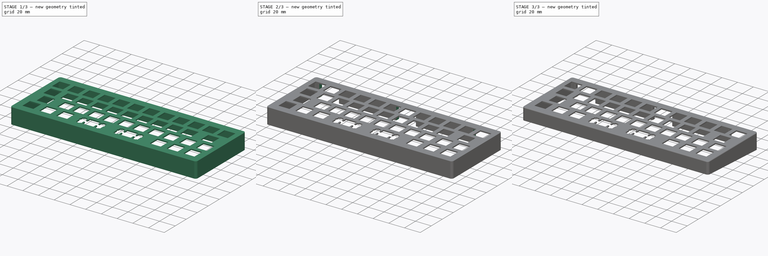
[diagram: build sequence overview — one tinted view per stage of 3, left to right]
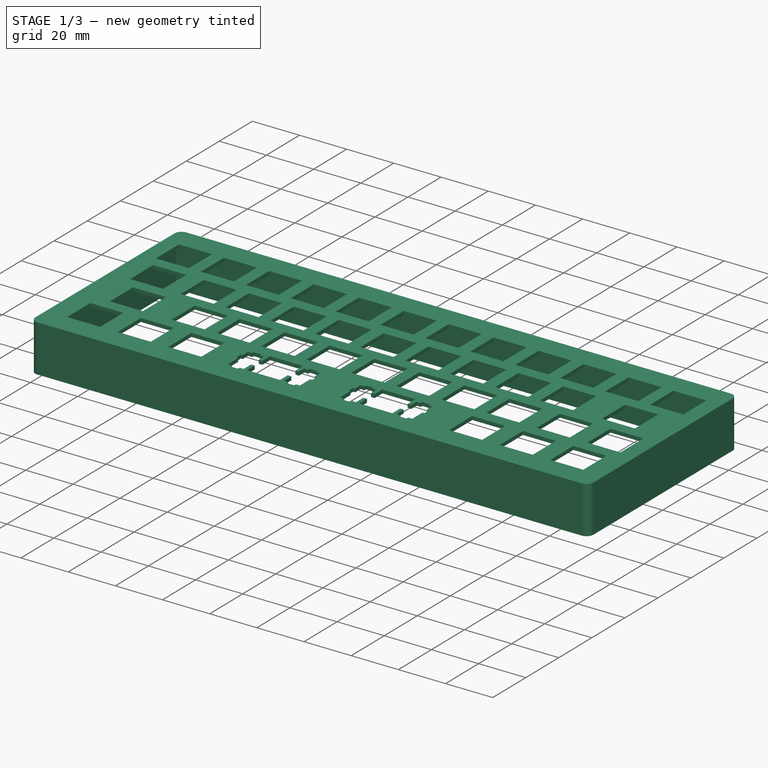
[diagram: stage 1 of 3 — iso view after this stage's code; geometry added in this stage tinted green]
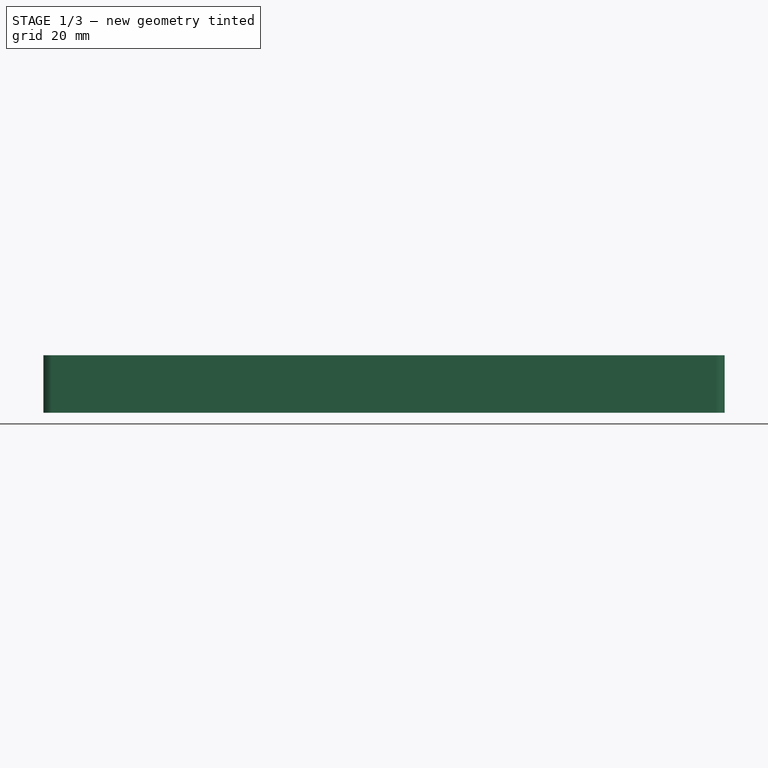
[diagram: stage 1 of 3 — front view after this stage's code; geometry added in this stage tinted green]
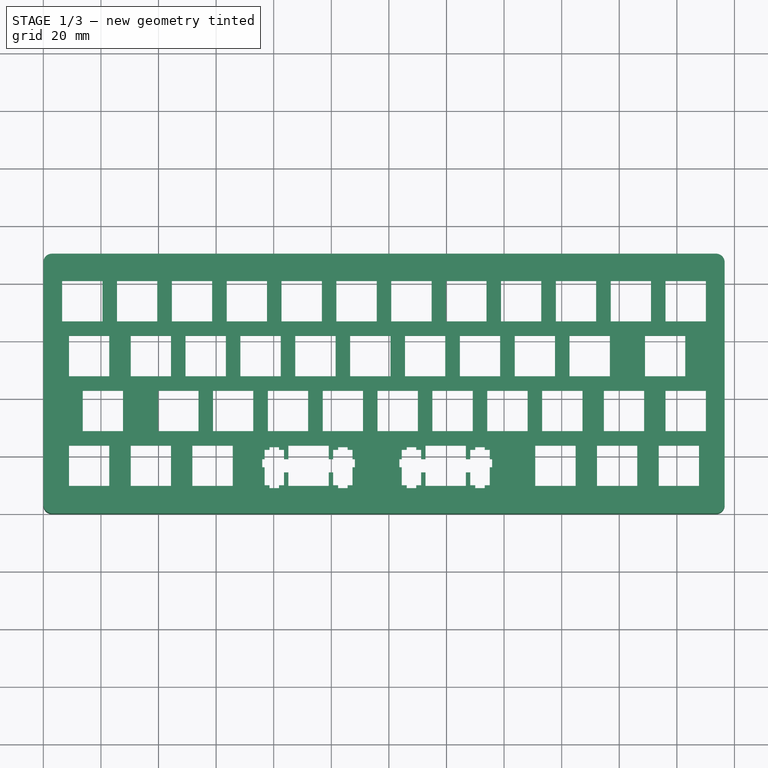
[diagram: stage 1 of 3 — top view after this stage's code; geometry added in this stage tinted green]
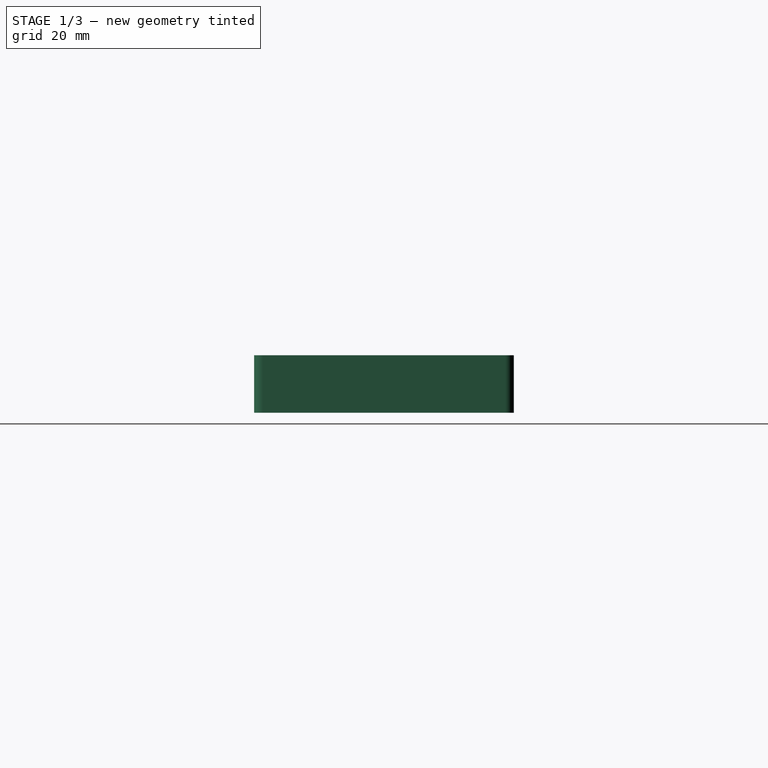
[diagram: stage 1 of 3 — right view after this stage's code; geometry added in this stage tinted green]
FCSTD DOCUMENT  (FreeCAD 0.20R)
Label: Case
License: All rights reserved
LicenseURL: http://en.wikipedia.org/wiki/All_rights_reserved
objects: Sketcher::SketchObject×4, PartDesign::Pocket×3, PartDesign::Pad×1, PartDesign::Fillet×1, PartDesign::Body×1
note: 15 computed .brp shape members not serialized (recipe doc carries the construction recipe); baked Part::Feature solids carry a one-line shape summary decoded from their .brp

FEATURE [Sketcher::SketchObject] Sketch
  FullyConstrained = false
  sketch-geometry (256):
    g0: LineSegment StartX=85.1059 StartY=23.5254 StartZ=0 EndX=85.1059 EndY=18.8249 EndZ=0
    g1: LineSegment StartX=85.1059 StartY=18.8249 StartZ=0 EndX=83.5805 EndY=18.8249 EndZ=0
    g2: LineSegment StartX=83.5805 StartY=18.8249 StartZ=0 EndX=83.5805 EndY=22.0551 EndZ=0
    g3: LineSegment StartX=83.5805 StartY=22.0551 StartZ=0 EndX=81.855 EndY=22.0551 EndZ=0
    g4: LineSegment StartX=81.855 StartY=22.0551 StartZ=0 EndX=81.855 EndY=22.977 EndZ=0
    g5: LineSegment StartX=81.855 StartY=22.977 StartZ=0 EndX=78.5559 EndY=22.977 EndZ=0
    g6: LineSegment StartX=78.5559 StartY=22.977 StartZ=0 EndX=78.5559 EndY=22.0551 EndZ=0
    g7: LineSegment StartX=78.5559 StartY=22.0551 StartZ=0 EndX=76.8308 EndY=22.0551 EndZ=0
    g8: LineSegment StartX=76.8308 StartY=22.0551 StartZ=0 EndX=76.8308 EndY=18.8249 EndZ=0
    g9: LineSegment StartX=76.8308 StartY=18.8249 StartZ=0 EndX=76.0053 EndY=18.8249 EndZ=0
    g10: LineSegment StartX=76.0053 StartY=18.8249 StartZ=0 EndX=76.0053 EndY=16.0261 EndZ=0
    g11: LineSegment StartX=76.0053 StartY=16.0261 StartZ=0 EndX=76.8308 EndY=16.0261 EndZ=0
    g12: LineSegment StartX=76.8308 StartY=16.0261 StartZ=0 EndX=76.8308 EndY=9.75608 EndZ=0
    g13: LineSegment StartX=76.8308 StartY=9.75608 StartZ=0 EndX=78.5559 EndY=9.75608 EndZ=0
    g14: LineSegment StartX=78.5559 StartY=9.75608 StartZ=0 EndX=78.5559 EndY=8.77492 EndZ=0
    g15: LineSegment StartX=78.5559 StartY=8.77492 StartZ=0 EndX=81.855 EndY=8.77492 EndZ=0
    g16: LineSegment StartX=81.855 StartY=8.77492 StartZ=0 EndX=81.855 EndY=9.75608 EndZ=0
    g17: LineSegment StartX=81.855 StartY=9.75608 StartZ=0 EndX=83.5805 EndY=9.75608 EndZ=0
    g18: LineSegment StartX=83.5805 StartY=9.75608 StartZ=0 EndX=83.5805 EndY=14.225 EndZ=0
    g19: LineSegment StartX=83.5805 StartY=14.225 StartZ=0 EndX=85.1059 EndY=14.225 EndZ=0
    g20: LineSegment StartX=85.1059 StartY=14.225 StartZ=0 EndX=85.1059 EndY=9.52595 EndZ=0
    g21: LineSegment StartX=85.1059 StartY=9.52595 StartZ=0 EndX=99.1052 EndY=9.52595 EndZ=0
    g22: LineSegment StartX=99.1052 StartY=9.52595 StartZ=0 EndX=99.1052 EndY=14.225 EndZ=0
    g23: LineSegment StartX=99.1052 StartY=14.225 StartZ=0 EndX=100.631 EndY=14.225 EndZ=0
    g24: LineSegment StartX=100.631 StartY=14.225 StartZ=0 EndX=100.631 EndY=9.75608 EndZ=0
    g25: LineSegment StartX=100.631 StartY=9.75608 StartZ=0 EndX=102.355 EndY=9.75608 EndZ=0
    g26: LineSegment StartX=102.355 StartY=9.75608 StartZ=0 EndX=102.355 EndY=8.77492 EndZ=0
    g27: LineSegment StartX=102.355 StartY=8.77492 StartZ=0 EndX=105.655 EndY=8.77492 EndZ=0
    g28: LineSegment StartX=105.655 StartY=8.77492 StartZ=0 EndX=105.655 EndY=9.75608 EndZ=0
    g29: LineSegment StartX=105.655 StartY=9.75608 StartZ=0 EndX=107.38 EndY=9.75608 EndZ=0
    g30: LineSegment StartX=107.38 StartY=9.75608 StartZ=0 EndX=107.38 EndY=16.0261 EndZ=0
    g31: LineSegment StartX=107.38 StartY=16.0261 StartZ=0 EndX=108.206 EndY=16.0261 EndZ=0
    g32: LineSegment StartX=108.206 StartY=16.0261 StartZ=0 EndX=108.206 EndY=18.8249 EndZ=0
    g33: LineSegment StartX=108.206 StartY=18.8249 StartZ=0 EndX=107.38 EndY=18.8249 EndZ=0
    g34: LineSegment StartX=107.38 StartY=18.8249 StartZ=0 EndX=107.38 EndY=22.0551 EndZ=0
    g35: LineSegment StartX=107.38 StartY=22.0551 StartZ=0 EndX=105.655 EndY=22.0551 EndZ=0
    g36: LineSegment StartX=105.655 StartY=22.0551 StartZ=0 EndX=105.655 EndY=22.977 EndZ=0
    g37: LineSegment StartX=105.655 StartY=22.977 StartZ=0 EndX=102.355 EndY=22.977 EndZ=0
    g38: LineSegment StartX=102.355 StartY=22.977 StartZ=0 EndX=102.355 EndY=22.0551 EndZ=0
    g39: LineSegment StartX=102.355 StartY=22.0551 StartZ=0 EndX=100.631 EndY=22.0551 EndZ=0
    g40: LineSegment StartX=100.631 StartY=22.0551 StartZ=0 EndX=100.631 EndY=18.8249 EndZ=0
    g41: LineSegment StartX=100.631 StartY=18.8249 StartZ=0 EndX=99.1052 EndY=18.8249 EndZ=0
    g42: LineSegment StartX=99.1052 StartY=18.8249 StartZ=0 EndX=99.1052 EndY=23.5254 EndZ=0
    g43: LineSegment StartX=99.1052 StartY=23.5254 StartZ=0 EndX=85.1059 EndY=23.5254 EndZ=0
    g44: LineSegment StartX=132.731 StartY=23.5254 StartZ=0 EndX=132.731 EndY=18.8249 EndZ=0
    g45: LineSegment StartX=132.731 StartY=18.8249 StartZ=0 EndX=131.206 EndY=18.8249 EndZ=0
    g46: LineSegment StartX=131.206 StartY=18.8249 StartZ=0 EndX=131.206 EndY=22.0551 EndZ=0
    g47: LineSegment StartX=131.206 StartY=22.0551 StartZ=0 EndX=129.48 EndY=22.0551 EndZ=0
    g48: LineSegment StartX=129.48 StartY=22.0551 StartZ=0 EndX=129.48 EndY=22.977 EndZ=0
    g49: LineSegment StartX=129.48 StartY=22.977 StartZ=0 EndX=126.181 EndY=22.977 EndZ=0
    g50: LineSegment StartX=126.181 StartY=22.977 StartZ=0 EndX=126.181 EndY=22.0551 EndZ=0
    g51: LineSegment StartX=126.181 StartY=22.0551 StartZ=0 EndX=124.456 EndY=22.0551 EndZ=0
    g52: LineSegment StartX=124.456 StartY=22.0551 StartZ=0 EndX=124.456 EndY=18.8249 EndZ=0
    g53: LineSegment StartX=124.456 StartY=18.8249 StartZ=0 EndX=123.63 EndY=18.8249 EndZ=0
    g54: LineSegment StartX=123.63 StartY=18.8249 StartZ=0 EndX=123.63 EndY=16.0261 EndZ=0
    g55: LineSegment StartX=123.63 StartY=16.0261 StartZ=0 EndX=124.456 EndY=16.0261 EndZ=0
    g56: LineSegment StartX=124.456 StartY=16.0261 StartZ=0 EndX=124.456 EndY=9.75608 EndZ=0
    g57: LineSegment StartX=124.456 StartY=9.75608 StartZ=0 EndX=126.181 EndY=9.75608 EndZ=0
    g58: LineSegment StartX=126.181 StartY=9.75608 StartZ=0 EndX=126.181 EndY=8.77492 EndZ=0
    g59: LineSegment StartX=126.181 StartY=8.77492 StartZ=0 EndX=129.48 EndY=8.77492 EndZ=0
    g60: LineSegment StartX=129.48 StartY=8.77492 StartZ=0 EndX=129.48 EndY=9.75608 EndZ=0
    g61: LineSegment StartX=129.48 StartY=9.75608 StartZ=0 EndX=131.206 EndY=9.75608 EndZ=0
    g62: LineSegment StartX=131.206 StartY=9.75608 StartZ=0 EndX=131.206 EndY=14.225 EndZ=0
    g63: LineSegment StartX=131.206 StartY=14.225 StartZ=0 EndX=132.731 EndY=14.225 EndZ=0
    g64: LineSegment StartX=132.731 StartY=14.225 StartZ=0 EndX=132.731 EndY=9.52595 EndZ=0
    g65: LineSegment StartX=132.731 StartY=9.52595 StartZ=0 EndX=146.73 EndY=9.52595 EndZ=0
    g66: LineSegment StartX=146.73 StartY=9.52595 StartZ=0 EndX=146.73 EndY=14.225 EndZ=0
    g67: LineSegment StartX=146.73 StartY=14.225 StartZ=0 EndX=148.256 EndY=14.225 EndZ=0
    g68: LineSegment StartX=148.256 StartY=14.225 StartZ=0 EndX=148.256 EndY=9.75608 EndZ=0
    g69: LineSegment StartX=148.256 StartY=9.75608 StartZ=0 EndX=149.981 EndY=9.75608 EndZ=0
    g70: LineSegment StartX=149.981 StartY=9.75608 StartZ=0 EndX=149.981 EndY=8.77492 EndZ=0
    g71: LineSegment StartX=149.981 StartY=8.77492 StartZ=0 EndX=153.28 EndY=8.77492 EndZ=0
    g72: LineSegment StartX=153.28 StartY=8.77492 StartZ=0 EndX=153.28 EndY=9.75608 EndZ=0
    g73: LineSegment StartX=153.28 StartY=9.75608 StartZ=0 EndX=155.005 EndY=9.75608 EndZ=0
    g74: LineSegment StartX=155.005 StartY=9.75608 StartZ=0 EndX=155.005 EndY=16.0261 EndZ=0
    g75: LineSegment StartX=155.005 StartY=16.0261 StartZ=0 EndX=155.831 EndY=16.0261 EndZ=0
    g76: LineSegment StartX=155.831 StartY=16.0261 StartZ=0 EndX=155.831 EndY=18.8249 EndZ=0
    g77: LineSegment StartX=155.831 StartY=18.8249 StartZ=0 EndX=155.005 EndY=18.8249 EndZ=0
    g78: LineSegment StartX=155.005 StartY=18.8249 StartZ=0 EndX=155.005 EndY=22.0551 EndZ=0
    g79: LineSegment StartX=155.005 StartY=22.0551 StartZ=0 EndX=153.28 EndY=22.0551 EndZ=0
    g80: LineSegment StartX=153.28 StartY=22.0551 StartZ=0 EndX=153.28 EndY=22.977 EndZ=0
    g81: LineSegment StartX=153.28 StartY=22.977 StartZ=0 EndX=149.981 EndY=22.977 EndZ=0
    g82: LineSegment StartX=149.981 StartY=22.977 StartZ=0 EndX=149.981 EndY=22.0551 EndZ=0
    g83: LineSegment StartX=149.981 StartY=22.0551 StartZ=0 EndX=148.256 EndY=22.0551 EndZ=0
    g84: LineSegment StartX=148.256 StartY=22.0551 StartZ=0 EndX=148.256 EndY=18.8249 EndZ=0
    g85: LineSegment StartX=148.256 StartY=18.8249 StartZ=0 EndX=146.73 EndY=18.8249 EndZ=0
    g86: LineSegment StartX=146.73 StartY=18.8249 StartZ=0 EndX=146.73 EndY=23.5254 EndZ=0
    g87: LineSegment StartX=146.73 StartY=23.5254 StartZ=0 EndX=132.731 EndY=23.5254 EndZ=0
    g88: LineSegment StartX=8.90583 StartY=23.5254 StartZ=0 EndX=22.9053 EndY=23.5254 EndZ=0
    g89: LineSegment StartX=22.9053 StartY=23.5254 StartZ=0 EndX=22.9053 EndY=9.52595 EndZ=0
    g90: LineSegment StartX=22.9053 StartY=9.52595 StartZ=0 EndX=8.90583 EndY=9.52595 EndZ=0
    g91: LineSegment StartX=8.90583 StartY=9.52595 StartZ=0 EndX=8.90583 EndY=23.5254 EndZ=0
    g92: LineSegment StartX=30.3371 StartY=23.5254 StartZ=0 EndX=44.3364 EndY=23.5254 EndZ=0
    g93: LineSegment StartX=44.3364 StartY=23.5254 StartZ=0 EndX=44.3364 EndY=9.52595 EndZ=0
    g94: LineSegment StartX=44.3364 StartY=9.52595 StartZ=0 EndX=30.3371 EndY=9.52595 EndZ=0
    g95: LineSegment StartX=30.3371 StartY=9.52595 StartZ=0 EndX=30.3371 EndY=23.5254 EndZ=0
    g96: LineSegment StartX=51.767 StartY=23.5254 StartZ=0 EndX=65.7677 EndY=23.5254 EndZ=0
    g97: LineSegment StartX=65.7677 StartY=23.5254 StartZ=0 EndX=65.7677 EndY=9.52595 EndZ=0
    g98: LineSegment StartX=65.7677 StartY=9.52595 StartZ=0 EndX=51.767 EndY=9.52595 EndZ=0
    g99: LineSegment StartX=51.767 StartY=9.52595 StartZ=0 EndX=51.767 EndY=23.5254 EndZ=0
    g100: LineSegment StartX=170.831 StartY=23.5254 StartZ=0 EndX=184.83 EndY=23.5254 EndZ=0
    g101: LineSegment StartX=184.83 StartY=23.5254 StartZ=0 EndX=184.83 EndY=9.52595 EndZ=0
    g102: LineSegment StartX=184.83 StartY=9.52595 StartZ=0 EndX=170.831 EndY=9.52595 EndZ=0
    g103: LineSegment StartX=170.831 StartY=9.52595 StartZ=0 EndX=170.831 EndY=23.5254 EndZ=0
    g104: LineSegment StartX=192.262 StartY=23.5254 StartZ=0 EndX=206.262 EndY=23.5254 EndZ=0
    g105: LineSegment StartX=206.262 StartY=23.5254 StartZ=0 EndX=206.262 EndY=9.52595 EndZ=0
    g106: LineSegment StartX=206.262 StartY=9.52595 StartZ=0 EndX=192.262 EndY=9.52595 EndZ=0
    g107: LineSegment StartX=192.262 StartY=9.52595 StartZ=0 EndX=192.262 EndY=23.5254 EndZ=0
    g108: LineSegment StartX=213.692 StartY=23.5254 StartZ=0 EndX=227.693 EndY=23.5254 EndZ=0
    g109: LineSegment StartX=227.693 StartY=23.5254 StartZ=0 EndX=227.693 EndY=9.52595 EndZ=0
    g110: LineSegment StartX=227.693 StartY=9.52595 StartZ=0 EndX=213.692 EndY=9.52595 EndZ=0
    g111: LineSegment StartX=213.692 StartY=9.52595 StartZ=0 EndX=213.692 EndY=23.5254 EndZ=0
    g112: LineSegment StartX=13.6669 StartY=42.5753 StartZ=0 EndX=27.6678 EndY=42.5753 EndZ=0
    g113: LineSegment StartX=27.6678 StartY=42.5753 StartZ=0 EndX=27.6678 EndY=28.5759 EndZ=0
    g114: LineSegment StartX=27.6678 StartY=28.5759 StartZ=0 EndX=13.6669 EndY=28.5759 EndZ=0
    g115: LineSegment StartX=13.6669 StartY=28.5759 StartZ=0 EndX=13.6669 EndY=42.5753 EndZ=0
    g116: LineSegment StartX=39.8621 StartY=42.5753 StartZ=0 EndX=53.8614 EndY=42.5753 EndZ=0
    g117: LineSegment StartX=53.8614 StartY=42.5753 StartZ=0 EndX=53.8614 EndY=28.5759 EndZ=0
    g118: LineSegment StartX=53.8614 StartY=28.5759 StartZ=0 EndX=39.8621 EndY=28.5759 EndZ=0
    g119: LineSegment StartX=39.8621 StartY=28.5759 StartZ=0 EndX=39.8621 EndY=42.5753 EndZ=0
    g120: LineSegment StartX=58.9121 StartY=42.5753 StartZ=0 EndX=72.9114 EndY=42.5753 EndZ=0
    g121: LineSegment StartX=72.9114 StartY=42.5753 StartZ=0 EndX=72.9114 EndY=28.5759 EndZ=0
    g122: LineSegment StartX=72.9114 StartY=28.5759 StartZ=0 EndX=58.9121 EndY=28.5759 EndZ=0
    g123: LineSegment StartX=58.9121 StartY=28.5759 StartZ=0 EndX=58.9121 EndY=42.5753 EndZ=0
    g124: LineSegment StartX=77.9621 StartY=42.5753 StartZ=0 EndX=91.9614 EndY=42.5753 EndZ=0
    g125: LineSegment StartX=91.9614 StartY=42.5753 StartZ=0 EndX=91.9614 EndY=28.5759 EndZ=0
    g126: LineSegment StartX=91.9614 StartY=28.5759 StartZ=0 EndX=77.9621 EndY=28.5759 EndZ=0
    g127: LineSegment StartX=77.9621 StartY=28.5759 StartZ=0 EndX=77.9621 EndY=42.5753 EndZ=0
    g128: LineSegment StartX=97.0121 StartY=42.5753 StartZ=0 EndX=111.012 EndY=42.5753 EndZ=0
    g129: LineSegment StartX=111.012 StartY=42.5753 StartZ=0 EndX=111.012 EndY=28.5759 EndZ=0
    g130: LineSegment StartX=111.012 StartY=28.5759 StartZ=0 EndX=97.0121 EndY=28.5759 EndZ=0
    g131: LineSegment StartX=97.0121 StartY=28.5759 StartZ=0 EndX=97.0121 EndY=42.5753 EndZ=0
    g132: LineSegment StartX=116.062 StartY=42.5753 StartZ=0 EndX=130.062 EndY=42.5753 EndZ=0
    g133: LineSegment StartX=130.062 StartY=42.5753 StartZ=0 EndX=130.062 EndY=28.5759 EndZ=0
    g134: LineSegment StartX=130.062 StartY=28.5759 StartZ=0 EndX=116.062 EndY=28.5759 EndZ=0
    g135: LineSegment StartX=116.062 StartY=28.5759 StartZ=0 EndX=116.062 EndY=42.5753 EndZ=0
    g136: LineSegment StartX=135.112 StartY=42.5753 StartZ=0 EndX=149.112 EndY=42.5753 EndZ=0
    g137: LineSegment StartX=149.112 StartY=42.5753 StartZ=0 EndX=149.112 EndY=28.5759 EndZ=0
    g138: LineSegment StartX=149.112 StartY=28.5759 StartZ=0 EndX=135.112 EndY=28.5759 EndZ=0
    g139: LineSegment StartX=135.112 StartY=28.5759 StartZ=0 EndX=135.112 EndY=42.5753 EndZ=0
    g140: LineSegment StartX=154.162 StartY=42.5753 StartZ=0 EndX=168.162 EndY=42.5753 EndZ=0
    g141: LineSegment StartX=168.162 StartY=42.5753 StartZ=0 EndX=168.162 EndY=28.5759 EndZ=0
    g142: LineSegment StartX=168.162 StartY=28.5759 StartZ=0 EndX=154.162 EndY=28.5759 EndZ=0
    g143: LineSegment StartX=154.162 StartY=28.5759 StartZ=0 EndX=154.162 EndY=42.5753 EndZ=0
    g144: LineSegment StartX=173.212 StartY=42.5753 StartZ=0 EndX=187.212 EndY=42.5753 EndZ=0
    g145: LineSegment StartX=187.212 StartY=42.5753 StartZ=0 EndX=187.212 EndY=28.5759 EndZ=0
    g146: LineSegment StartX=187.212 StartY=28.5759 StartZ=0 EndX=173.212 EndY=28.5759 EndZ=0
    g147: LineSegment StartX=173.212 StartY=28.5759 StartZ=0 EndX=173.212 EndY=42.5753 EndZ=0
    g148: LineSegment StartX=194.642 StartY=42.5753 StartZ=0 EndX=208.643 EndY=42.5753 EndZ=0
    g149: LineSegment StartX=208.643 StartY=42.5753 StartZ=0 EndX=208.643 EndY=28.5759 EndZ=0
    g150: LineSegment StartX=208.643 StartY=28.5759 StartZ=0 EndX=194.642 EndY=28.5759 EndZ=0
    g151: LineSegment StartX=194.642 StartY=28.5759 StartZ=0 EndX=194.642 EndY=42.5753 EndZ=0
    g152: LineSegment StartX=216.075 StartY=42.5753 StartZ=0 EndX=230.074 EndY=42.5753 EndZ=0
    g153: LineSegment StartX=230.074 StartY=42.5753 StartZ=0 EndX=230.074 EndY=28.5759 EndZ=0
    g154: LineSegment StartX=230.074 StartY=28.5759 StartZ=0 EndX=216.075 EndY=28.5759 EndZ=0
    g155: LineSegment StartX=216.075 StartY=28.5759 StartZ=0 EndX=216.075 EndY=42.5753 EndZ=0
    g156: LineSegment StartX=8.90583 StartY=61.6254 StartZ=0 EndX=22.9053 EndY=61.6254 EndZ=0
    g157: LineSegment StartX=22.9053 StartY=61.6254 StartZ=0 EndX=22.9053 EndY=47.6261 EndZ=0
    g158: LineSegment StartX=22.9053 StartY=47.6261 StartZ=0 EndX=8.90583 EndY=47.6261 EndZ=0
    g159: LineSegment StartX=8.90583 StartY=47.6261 StartZ=0 EndX=8.90583 EndY=61.6254 EndZ=0
    g160: LineSegment StartX=30.3371 StartY=61.6254 StartZ=0 EndX=44.3364 EndY=61.6254 EndZ=0
    g161: LineSegment StartX=44.3364 StartY=61.6254 StartZ=0 EndX=44.3364 EndY=47.6261 EndZ=0
    g162: LineSegment StartX=44.3364 StartY=47.6261 StartZ=0 EndX=30.3371 EndY=47.6261 EndZ=0
    g163: LineSegment StartX=30.3371 StartY=47.6261 StartZ=0 EndX=30.3371 EndY=61.6254 EndZ=0
    g164: LineSegment StartX=49.3871 StartY=61.6254 StartZ=0 EndX=63.3864 EndY=61.6254 EndZ=0
    g165: LineSegment StartX=63.3864 StartY=61.6254 StartZ=0 EndX=63.3864 EndY=47.6261 EndZ=0
    g166: LineSegment StartX=63.3864 StartY=47.6261 StartZ=0 EndX=49.3871 EndY=47.6261 EndZ=0
    g167: LineSegment StartX=49.3871 StartY=47.6261 StartZ=0 EndX=49.3871 EndY=61.6254 EndZ=0
    g168: LineSegment StartX=68.4371 StartY=61.6254 StartZ=0 EndX=82.4364 EndY=61.6254 EndZ=0
    g169: LineSegment StartX=82.4364 StartY=61.6254 StartZ=0 EndX=82.4364 EndY=47.6261 EndZ=0
    g170: LineSegment StartX=82.4364 StartY=47.6261 StartZ=0 EndX=68.4371 EndY=47.6261 EndZ=0
    g171: LineSegment StartX=68.4371 StartY=47.6261 StartZ=0 EndX=68.4371 EndY=61.6254 EndZ=0
    g172: LineSegment StartX=87.4871 StartY=61.6254 StartZ=0 EndX=101.486 EndY=61.6254 EndZ=0
    g173: LineSegment StartX=101.486 StartY=61.6254 StartZ=0 EndX=101.486 EndY=47.6261 EndZ=0
    g174: LineSegment StartX=101.486 StartY=47.6261 StartZ=0 EndX=87.4871 EndY=47.6261 EndZ=0
    g175: LineSegment StartX=87.4871 StartY=47.6261 StartZ=0 EndX=87.4871 EndY=61.6254 EndZ=0
    g176: LineSegment StartX=106.537 StartY=61.6254 StartZ=0 EndX=120.537 EndY=61.6254 EndZ=0
    g177: LineSegment StartX=120.537 StartY=61.6254 StartZ=0 EndX=120.537 EndY=47.6261 EndZ=0
    g178: LineSegment StartX=120.537 StartY=47.6261 StartZ=0 EndX=106.537 EndY=47.6261 EndZ=0
    g179: LineSegment StartX=106.537 StartY=47.6261 StartZ=0 EndX=106.537 EndY=61.6254 EndZ=0
    g180: LineSegment StartX=125.587 StartY=61.6254 StartZ=0 EndX=139.587 EndY=61.6254 EndZ=0
    g181: LineSegment StartX=139.587 StartY=61.6254 StartZ=0 EndX=139.587 EndY=47.6261 EndZ=0
    g182: LineSegment StartX=139.587 StartY=47.6261 StartZ=0 EndX=125.587 EndY=47.6261 EndZ=0
    g183: LineSegment StartX=125.587 StartY=47.6261 StartZ=0 EndX=125.587 EndY=61.6254 EndZ=0
    g184: LineSegment StartX=144.637 StartY=61.6254 StartZ=0 EndX=158.637 EndY=61.6254 EndZ=0
    g185: LineSegment StartX=158.637 StartY=61.6254 StartZ=0 EndX=158.637 EndY=47.6261 EndZ=0
    g186: LineSegment StartX=158.637 StartY=47.6261 StartZ=0 EndX=144.637 EndY=47.6261 EndZ=0
    g187: LineSegment StartX=144.637 StartY=47.6261 StartZ=0 EndX=144.637 EndY=61.6254 EndZ=0
    g188: LineSegment StartX=163.687 StartY=61.6254 StartZ=0 EndX=177.687 EndY=61.6254 EndZ=0
    g189: LineSegment StartX=177.687 StartY=61.6254 StartZ=0 EndX=177.687 EndY=47.6261 EndZ=0
    g190: LineSegment StartX=177.687 StartY=47.6261 StartZ=0 EndX=163.687 EndY=47.6261 EndZ=0
    g191: LineSegment StartX=163.687 StartY=47.6261 StartZ=0 EndX=163.687 EndY=61.6254 EndZ=0
    g192: LineSegment StartX=182.737 StartY=61.6254 StartZ=0 EndX=196.737 EndY=61.6254 EndZ=0
    g193: LineSegment StartX=196.737 StartY=61.6254 StartZ=0 EndX=196.737 EndY=47.6261 EndZ=0
    g194: LineSegment StartX=196.737 StartY=47.6261 StartZ=0 EndX=182.737 EndY=47.6261 EndZ=0
    g195: LineSegment StartX=182.737 StartY=47.6261 StartZ=0 EndX=182.737 EndY=61.6254 EndZ=0
    g196: LineSegment StartX=208.931 StartY=61.6254 StartZ=0 EndX=222.93 EndY=61.6254 EndZ=0
    g197: LineSegment StartX=222.93 StartY=61.6254 StartZ=0 EndX=222.93 EndY=47.6261 EndZ=0
    g198: LineSegment StartX=222.93 StartY=47.6261 StartZ=0 EndX=208.931 EndY=47.6261 EndZ=0
    g199: LineSegment StartX=208.931 StartY=47.6261 StartZ=0 EndX=208.931 EndY=61.6254 EndZ=0
    g200: LineSegment StartX=6.52457 StartY=80.6754 StartZ=0 EndX=20.5241 EndY=80.6754 EndZ=0
    g201: LineSegment StartX=20.5241 StartY=80.6754 StartZ=0 EndX=20.5241 EndY=66.6761 EndZ=0
    g202: LineSegment StartX=20.5241 StartY=66.6761 StartZ=0 EndX=6.52457 EndY=66.6761 EndZ=0
    g203: LineSegment StartX=6.52457 StartY=66.6761 StartZ=0 EndX=6.52457 EndY=80.6754 EndZ=0
    g204: LineSegment StartX=25.5746 StartY=80.6754 StartZ=0 EndX=39.5739 EndY=80.6754 EndZ=0
    g205: LineSegment StartX=39.5739 StartY=80.6754 StartZ=0 EndX=39.5739 EndY=66.6761 EndZ=0
    g206: LineSegment StartX=39.5739 StartY=66.6761 StartZ=0 EndX=25.5746 EndY=66.6761 EndZ=0
    g207: LineSegment StartX=25.5746 StartY=66.6761 StartZ=0 EndX=25.5746 EndY=80.6754 EndZ=0
    g208: LineSegment StartX=44.6246 StartY=80.6754 StartZ=0 EndX=58.6239 EndY=80.6754 EndZ=0
    g209: LineSegment StartX=58.6239 StartY=80.6754 StartZ=0 EndX=58.6239 EndY=66.6761 EndZ=0
    g210: LineSegment StartX=58.6239 StartY=66.6761 StartZ=0 EndX=44.6246 EndY=66.6761 EndZ=0
    g211: LineSegment StartX=44.6246 StartY=66.6761 StartZ=0 EndX=44.6246 EndY=80.6754 EndZ=0
    g212: LineSegment StartX=63.6746 StartY=80.6754 StartZ=0 EndX=77.6739 EndY=80.6754 EndZ=0
    g213: LineSegment StartX=77.6739 StartY=80.6754 StartZ=0 EndX=77.6739 EndY=66.6761 EndZ=0
    g214: LineSegment StartX=77.6739 StartY=66.6761 StartZ=0 EndX=63.6746 EndY=66.6761 EndZ=0
    g215: LineSegment StartX=63.6746 StartY=66.6761 StartZ=0 EndX=63.6746 EndY=80.6754 EndZ=0
    g216: LineSegment StartX=82.7246 StartY=80.6754 StartZ=0 EndX=96.7239 EndY=80.6754 EndZ=0
    g217: LineSegment StartX=96.7239 StartY=80.6754 StartZ=0 EndX=96.7239 EndY=66.6761 EndZ=0
    g218: LineSegment StartX=96.7239 StartY=66.6761 StartZ=0 EndX=82.7246 EndY=66.6761 EndZ=0
    g219: LineSegment StartX=82.7246 StartY=66.6761 StartZ=0 EndX=82.7246 EndY=80.6754 EndZ=0
    g220: LineSegment StartX=101.773 StartY=80.6754 StartZ=0 EndX=115.774 EndY=80.6754 EndZ=0
    g221: LineSegment StartX=115.774 StartY=80.6754 StartZ=0 EndX=115.774 EndY=66.6761 EndZ=0
    g222: LineSegment StartX=115.774 StartY=66.6761 StartZ=0 EndX=101.773 EndY=66.6761 EndZ=0
    g223: LineSegment StartX=101.773 StartY=66.6761 StartZ=0 EndX=101.773 EndY=80.6754 EndZ=0
    g224: LineSegment StartX=120.823 StartY=80.6754 StartZ=0 EndX=134.824 EndY=80.6754 EndZ=0
    g225: LineSegment StartX=134.824 StartY=80.6754 StartZ=0 EndX=134.824 EndY=66.6761 EndZ=0
    g226: LineSegment StartX=134.824 StartY=66.6761 StartZ=0 EndX=120.823 EndY=66.6761 EndZ=0
    g227: LineSegment StartX=120.823 StartY=66.6761 StartZ=0 EndX=120.823 EndY=80.6754 EndZ=0
    g228: LineSegment StartX=139.875 StartY=80.6754 StartZ=0 EndX=153.874 EndY=80.6754 EndZ=0
    g229: LineSegment StartX=153.874 StartY=80.6754 StartZ=0 EndX=153.874 EndY=66.6761 EndZ=0
    g230: LineSegment StartX=153.874 StartY=66.6761 StartZ=0 EndX=139.875 EndY=66.6761 EndZ=0
    g231: LineSegment StartX=139.875 StartY=66.6761 StartZ=0 EndX=139.875 EndY=80.6754 EndZ=0
    g232: LineSegment StartX=158.925 StartY=80.6754 StartZ=0 EndX=172.924 EndY=80.6754 EndZ=0
    g233: LineSegment StartX=172.924 StartY=80.6754 StartZ=0 EndX=172.924 EndY=66.6761 EndZ=0
    g234: LineSegment StartX=172.924 StartY=66.6761 StartZ=0 EndX=158.925 EndY=66.6761 EndZ=0
    g235: LineSegment StartX=158.925 StartY=66.6761 StartZ=0 EndX=158.925 EndY=80.6754 EndZ=0
    g236: LineSegment StartX=177.975 StartY=80.6754 StartZ=0 EndX=191.974 EndY=80.6754 EndZ=0
    g237: LineSegment StartX=191.974 StartY=80.6754 StartZ=0 EndX=191.974 EndY=66.6761 EndZ=0
    g238: LineSegment StartX=191.974 StartY=66.6761 StartZ=0 EndX=177.975 EndY=66.6761 EndZ=0
    g239: LineSegment StartX=177.975 StartY=66.6761 StartZ=0 EndX=177.975 EndY=80.6754 EndZ=0
    g240: LineSegment StartX=197.025 StartY=80.6754 StartZ=0 EndX=211.024 EndY=80.6754 EndZ=0
    g241: LineSegment StartX=211.024 StartY=80.6754 StartZ=0 EndX=211.024 EndY=66.6761 EndZ=0
    g242: LineSegment StartX=211.024 StartY=66.6761 StartZ=0 EndX=197.025 EndY=66.6761 EndZ=0
    g243: LineSegment StartX=197.025 StartY=66.6761 StartZ=0 EndX=197.025 EndY=80.6754 EndZ=0
    g244: LineSegment StartX=216.075 StartY=80.6754 StartZ=0 EndX=230.074 EndY=80.6754 EndZ=0
    g245: LineSegment StartX=230.074 StartY=80.6754 StartZ=0 EndX=230.074 EndY=66.6761 EndZ=0
    g246: LineSegment StartX=230.074 StartY=66.6761 StartZ=0 EndX=216.075 EndY=66.6761 EndZ=0
    g247: LineSegment StartX=216.075 StartY=66.6761 StartZ=0 EndX=216.075 EndY=80.6754 EndZ=0
    g248: ArcOfCircle CenterX=233.6 CenterY=3 CenterZ=0 NormalX=0 NormalY=0 NormalZ=1 AngleXU=0 Radius=3 StartAngle=4.71239 EndAngle=6.28319
    g249: LineSegment StartX=236.6 StartY=87.1998 StartZ=0 EndX=236.6 EndY=3 EndZ=0
    g250: ArcOfCircle CenterX=233.6 CenterY=87.1998 CenterZ=0 NormalX=0 NormalY=0 NormalZ=1 AngleXU=0 Radius=3 StartAngle=0 EndAngle=1.5708
    g251: LineSegment StartX=3 StartY=90.1998 StartZ=0 EndX=233.6 EndY=90.1998 EndZ=0
    g252: ArcOfCircle CenterX=3 CenterY=87.1998 CenterZ=0 NormalX=0 NormalY=0 NormalZ=1 AngleXU=0 Radius=3 StartAngle=1.5708 EndAngle=3.14159
    g253: LineSegment StartX=233.6 StartY=0 StartZ=0 EndX=3 EndY=0 EndZ=0
    g254: LineSegment StartX=0 StartY=3 StartZ=0 EndX=0 EndY=87.1998 EndZ=0
    g255: ArcOfCircle CenterX=3 CenterY=3 CenterZ=0 NormalX=0 NormalY=0 NormalZ=1 AngleXU=0 Radius=3 StartAngle=3.14159 EndAngle=4.71239
  constraints (256):
    c: Coincident(g254,g255)
    c: Coincident(g252,g254)
    c: Coincident(g253,g255)
    c: Coincident(g251,g252)
    c: Coincident(g202,g203)
    c: Coincident(g200,g203)
    c: Coincident(g90,g91)
    c: Coincident(g88,g91)
    c: Coincident(g158,g159)
    c: Coincident(g156,g159)
    c: Coincident(g114,g115)
    c: Coincident(g112,g115)
    c: Coincident(g201,g202)
    c: Coincident(g200,g201)
    c: Coincident(g89,g90)
    c: Coincident(g88,g89)
    c: Coincident(g157,g158)
    c: Coincident(g156,g157)
    c: Coincident(g206,g207)
    c: Coincident(g204,g207)
    c: Coincident(g113,g114)
    c: Coincident(g112,g113)
    c: Coincident(g94,g95)
    c: Coincident(g92,g95)
    c: Coincident(g162,g163)
    c: Coincident(g160,g163)
    c: Coincident(g205,g206)
    c: Coincident(g204,g205)
    c: Coincident(g118,g119)
    c: Coincident(g116,g119)
    c: Coincident(g93,g94)
    c: Coincident(g92,g93)
    c: Coincident(g161,g162)
    c: Coincident(g160,g161)
    c: Coincident(g210,g211)
    c: Coincident(g208,g211)
    c: Coincident(g166,g167)
    c: Coincident(g164,g167)
    c: Coincident(g98,g99)
    c: Coincident(g96,g99)
    c: Coincident(g117,g118)
    c: Coincident(g116,g117)
    c: Coincident(g209,g210)
    c: Coincident(g208,g209)
    c: Coincident(g122,g123)
    c: Coincident(g120,g123)
    c: Coincident(g165,g166)
    c: Coincident(g164,g165)
    c: Coincident(g214,g215)
    c: Coincident(g212,g215)
    c: Coincident(g97,g98)
    c: Coincident(g96,g97)
    c: Coincident(g170,g171)
    c: Coincident(g168,g171)
    c: Coincident(g121,g122)
    c: Coincident(g120,g121)
    c: Coincident(g10,g11)
    c: Coincident(g9,g10)
    c: Coincident(g12,g13)
    c: Coincident(g11,g12)
    c: Coincident(g8,g9)
    c: Coincident(g7,g8)
    c: Coincident(g213,g214)
    c: Coincident(g212,g213)
    c: Coincident(g126,g127)
    c: Coincident(g124,g127)
    c: Coincident(g14,g15)
    c: Coincident(g13,g14)
    c: Coincident(g6,g7)
    c: Coincident(g5,g6)
    c: Coincident(g15,g16)
    c: Coincident(g16,g17)
    c: Coincident(g3,g4)
    c: Coincident(g4,g5)
    c: Coincident(g169,g170)
    c: Coincident(g168,g169)
    c: Coincident(g218,g219)
    c: Coincident(g216,g219)
    c: Coincident(g17,g18)
    c: Coincident(g18,g19)
    c: Coincident(g1,g2)
    c: Coincident(g2,g3)
    c: Coincident(g20,g21)
    c: Coincident(g19,g20)
    c: Coincident(g0,g1)
    c: Coincident(g0,g43)
    c: Coincident(g174,g175)
    c: Coincident(g172,g175)
    c: Coincident(g125,g126)
    c: Coincident(g124,g125)
    c: Coincident(g217,g218)
    c: Coincident(g216,g217)
    c: Coincident(g130,g131)
    c: Coincident(g128,g131)
    c: Coincident(g21,g22)
    c: Coincident(g22,g23)
    c: Coincident(g41,g42)
    c: Coincident(g42,g43)
    c: Coincident(g24,g25)
    c: Coincident(g23,g24)
    c: Coincident(g40,g41)
    c: Coincident(g39,g40)
    c: Coincident(g173,g174)
    c: Coincident(g172,g173)
    c: Coincident(g222,g223)
    c: Coincident(g220,g223)
    c: Coincident(g26,g27)
    c: Coincident(g25,g26)
    c: Coincident(g38,g39)
    c: Coincident(g37,g38)
    c: Coincident(g27,g28)
    c: Coincident(g28,g29)
    c: Coincident(g35,g36)
    c: Coincident(g36,g37)
    c: Coincident(g178,g179)
    c: Coincident(g176,g179)
    c: Coincident(g29,g30)
    c: Coincident(g30,g31)
    c: Coincident(g33,g34)
    c: Coincident(g34,g35)
    c: Coincident(g31,g32)
    c: Coincident(g32,g33)
    c: Coincident(g129,g130)
    c: Coincident(g128,g129)
    c: Coincident(g221,g222)
    c: Coincident(g220,g221)
    c: Coincident(g134,g135)
    c: Coincident(g132,g135)
    c: Coincident(g177,g178)
    c: Coincident(g176,g177)
    c: Coincident(g226,g227)
    c: Coincident(g224,g227)
    c: Coincident(g54,g55)
    c: Coincident(g53,g54)
    c: Coincident(g56,g57)
    c: Coincident(g55,g56)
    c: Coincident(g52,g53)
    c: Coincident(g51,g52)
    c: Coincident(g182,g183)
    c: Coincident(g180,g183)
    c: Coincident(g58,g59)
    c: Coincident(g57,g58)
    c: Coincident(g50,g51)
    c: Coincident(g49,g50)
    c: Coincident(g59,g60)
    c: Coincident(g60,g61)
    c: Coincident(g47,g48)
    c: Coincident(g48,g49)
    c: Coincident(g133,g134)
    c: Coincident(g132,g133)
    c: Coincident(g61,g62)
    c: Coincident(g62,g63)
    c: Coincident(g45,g46)
    c: Coincident(g46,g47)
    c: Coincident(g64,g65)
    c: Coincident(g63,g64)
    c: Coincident(g44,g45)
    c: Coincident(g44,g87)
    c: Coincident(g225,g226)
    c: Coincident(g224,g225)
    c: Coincident(g138,g139)
    c: Coincident(g136,g139)
    c: Coincident(g181,g182)
    c: Coincident(g180,g181)
    c: Coincident(g230,g231)
    c: Coincident(g228,g231)
    c: Coincident(g186,g187)
    c: Coincident(g184,g187)
    c: Coincident(g65,g66)
    c: Coincident(g66,g67)
    c: Coincident(g85,g86)
    c: Coincident(g86,g87)
    c: Coincident(g68,g69)
    c: Coincident(g67,g68)
    c: Coincident(g84,g85)
    c: Coincident(g83,g84)
    c: Coincident(g137,g138)
    c: Coincident(g136,g137)
    c: Coincident(g70,g71)
    c: Coincident(g69,g70)
    c: Coincident(g82,g83)
    c: Coincident(g81,g82)
    c: Coincident(g71,g72)
    c: Coincident(g72,g73)
    c: Coincident(g79,g80)
    c: Coincident(g80,g81)
    c: Coincident(g229,g230)
    c: Coincident(g228,g229)
    c: Coincident(g142,g143)
    c: Coincident(g140,g143)
    c: Coincident(g73,g74)
    c: Coincident(g74,g75)
    c: Coincident(g77,g78)
    c: Coincident(g78,g79)
    c: Coincident(g75,g76)
    c: Coincident(g76,g77)
    c: Coincident(g185,g186)
    c: Coincident(g184,g185)
    c: Coincident(g234,g235)
    c: Coincident(g232,g235)
    c: Coincident(g190,g191)
    c: Coincident(g188,g191)
    c: Coincident(g141,g142)
    c: Coincident(g140,g141)
    c: Coincident(g102,g103)
    c: Coincident(g100,g103)
    c: Coincident(g233,g234)
    c: Coincident(g232,g233)
    c: Coincident(g146,g147)
    c: Coincident(g144,g147)
    c: Coincident(g189,g190)
    c: Coincident(g188,g189)
    c: Coincident(g238,g239)
    c: Coincident(g236,g239)
    c: Coincident(g194,g195)
    c: Coincident(g192,g195)
    c: Coincident(g101,g102)
    c: Coincident(g100,g101)
    c: Coincident(g145,g146)
    c: Coincident(g144,g145)
    c: Coincident(g237,g238)
    c: Coincident(g236,g237)
    c: Coincident(g106,g107)
    c: Coincident(g104,g107)
    c: Coincident(g150,g151)
    c: Coincident(g148,g151)
    c: Coincident(g193,g194)
    c: Coincident(g192,g193)
    c: Coincident(g242,g243)
    c: Coincident(g240,g243)
    c: Coincident(g105,g106)
    c: Coincident(g104,g105)
    c: Coincident(g149,g150)
    c: Coincident(g148,g149)
    c: Coincident(g198,g199)
    c: Coincident(g196,g199)
    c: Coincident(g241,g242)
    c: Coincident(g240,g241)
    c: Coincident(g110,g111)
    c: Coincident(g108,g111)
    c: Coincident(g154,g155)
    c: Coincident(g152,g155)
    c: Coincident(g246,g247)
    c: Coincident(g244,g247)
    c: Coincident(g197,g198)
    c: Coincident(g196,g197)
    c: Coincident(g109,g110)
    c: Coincident(g108,g109)
    c: Coincident(g153,g154)
    c: Coincident(g152,g153)
    c: Coincident(g245,g246)
    c: Coincident(g244,g245)
    c: Coincident(g248,g253)
    c: Coincident(g250,g251)
    c: Coincident(g248,g249)
    c: Coincident(g249,g250)
FEATURE [PartDesign::Pad] Pad
  AlongSketchNormal = false
  Direction = (0,0,1)
  Length = 20
  Length2 = 10
  Profile = -> Sketch
  ReferenceAxis = -> Sketch [N_Axis]
  Type = 0
FEATURE [Sketcher::SketchObject] Sketch001
  ExternalGeometry = -> [Pad]
  FullyConstrained = true
  MapMode = 5
  Placement = pos=(0,0,0) rot=(1,0,0;3.14159rad)
  Support = -> [Pad]
  sketch-geometry (4):
    g0: LineSegment StartX=234.6 StartY=-5 StartZ=0 EndX=2 EndY=-5 EndZ=0
    g1: LineSegment StartX=2 StartY=-5 StartZ=0 EndX=2 EndY=-85.1998 EndZ=0
    g2: LineSegment StartX=2 StartY=-85.1998 StartZ=0 EndX=234.6 EndY=-85.1998 EndZ=0
    g3: LineSegment StartX=234.6 StartY=-85.1998 StartZ=0 EndX=234.6 EndY=-5 EndZ=0
  constraints (12):
    c: Coincident(g0,g1)
    c: Coincident(g1,g2)
    c: Coincident(g2,g3)
    c: Coincident(g3,g0)
    c: Horizontal(g0)
    c: Horizontal(g2)
    c: Vertical(g1)
    c: Vertical(g3)
    c: DistanceY(g-5,g1) = 5
    c: DistanceY(g0,g-3) = 5
    c: DistanceX(g0,g-4) = 2
    c: DistanceX(g-6,g1) = 2
FEATURE [PartDesign::Pocket] Pocket
  BaseFeature = -> Pad
  Direction = (0,0,1)
  Length = 0
  Length2 = 5
  Offset = -1.5
  Profile = -> Sketch001
  ReferenceAxis = -> Sketch001 [N_Axis]
  Type = 3
  UpToFace = -> Pad [Face258]
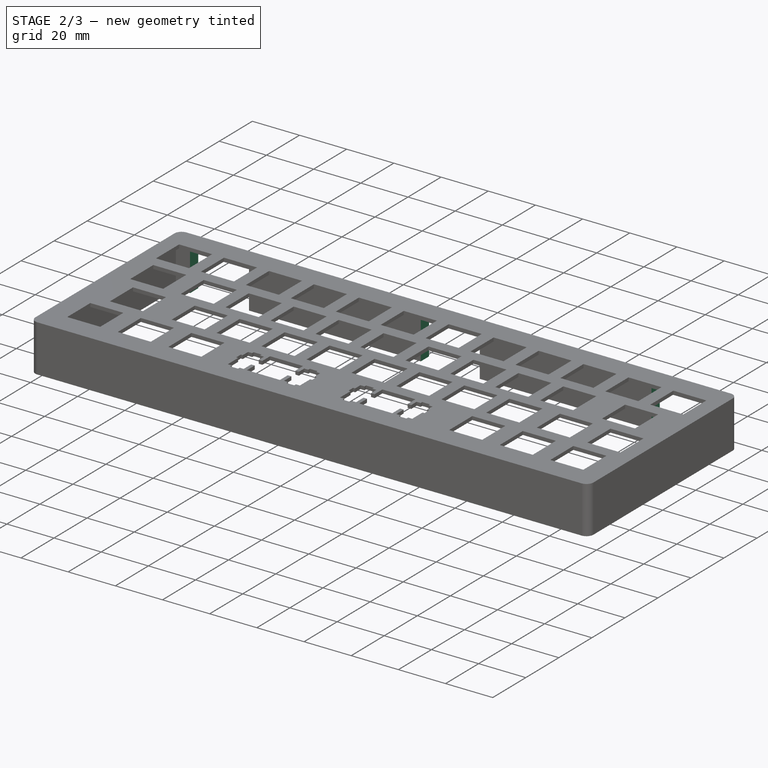
[diagram: stage 2 of 3 — iso view after this stage's code; geometry added in this stage tinted green]
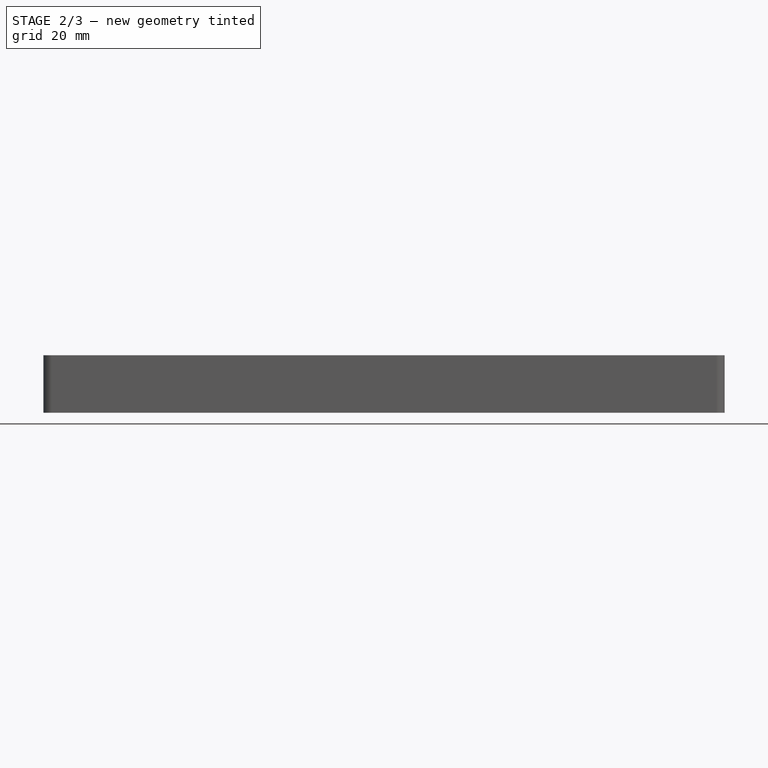
[diagram: stage 2 of 3 — front view after this stage's code; geometry added in this stage tinted green]
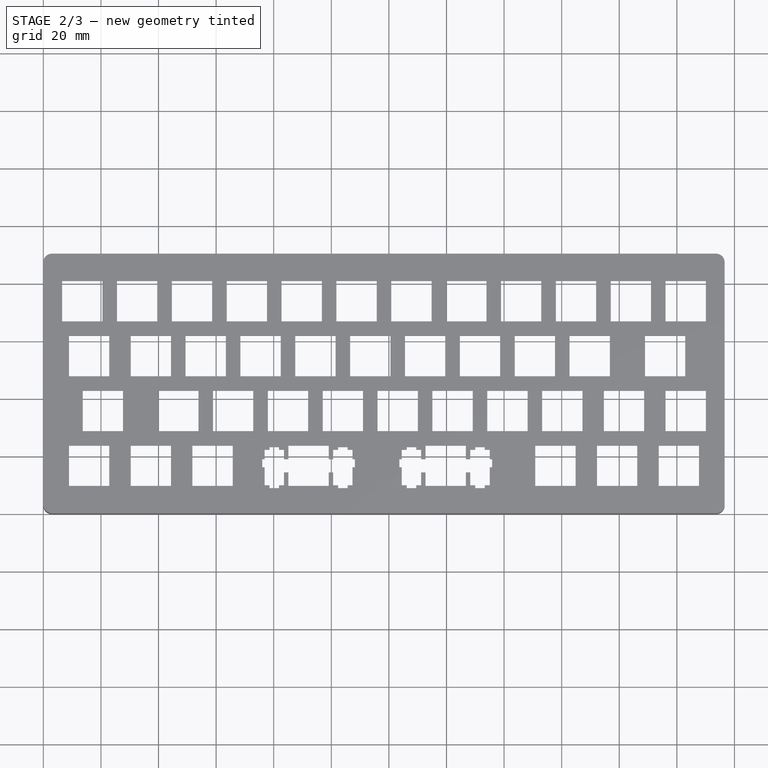
[diagram: stage 2 of 3 — top view after this stage's code; geometry added in this stage tinted green]
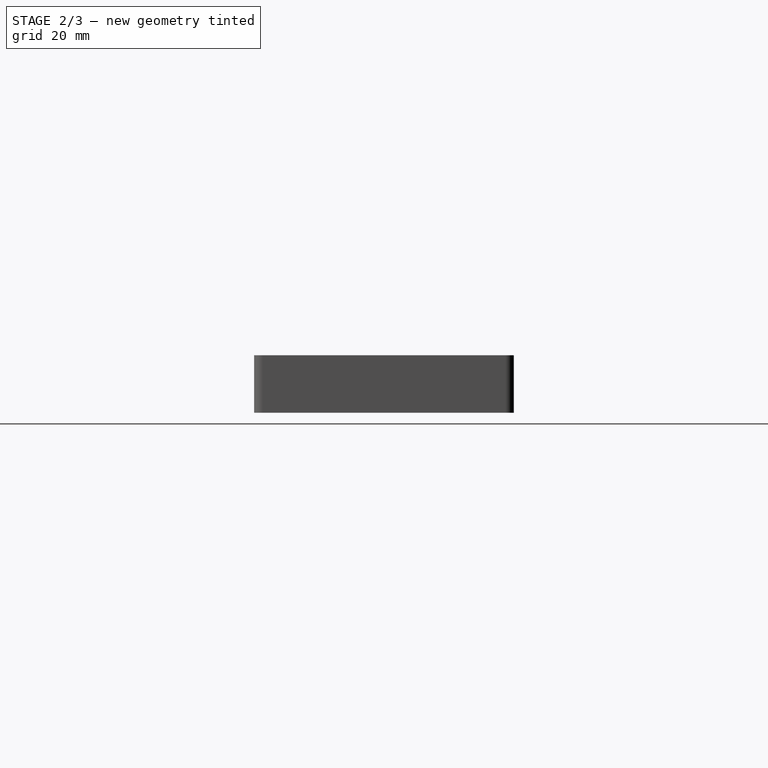
[diagram: stage 2 of 3 — right view after this stage's code; geometry added in this stage tinted green]
FEATURE [Sketcher::SketchObject] Sketch002
  ExternalGeometry = -> [Pocket]
  FullyConstrained = true
  MapMode = 5
  Placement = pos=(0,0,0) rot=(1,0,0;3.14159rad)
  Support = -> [Pocket]
  sketch-geometry (14):
    g0: LineSegment StartX=228.6 StartY=-90.1998 StartZ=0 EndX=203.6 EndY=-90.1998 EndZ=0
    g1: LineSegment StartX=203.6 StartY=-90.1998 StartZ=0 EndX=203.6 EndY=-85.1998 EndZ=0
    g2: LineSegment StartX=203.6 StartY=-85.1998 StartZ=0 EndX=228.6 EndY=-85.1998 EndZ=0
    g3: LineSegment StartX=228.6 StartY=-85.1998 StartZ=0 EndX=228.6 EndY=-90.1998 EndZ=0
    g4: LineSegment StartX=130.8 StartY=-90.1998 StartZ=0 EndX=105.8 EndY=-90.1998 EndZ=0
    g5: LineSegment StartX=105.8 StartY=-90.1998 StartZ=0 EndX=105.8 EndY=-85.1998 EndZ=0
    g6: LineSegment StartX=105.8 StartY=-85.1998 StartZ=0 EndX=130.8 EndY=-85.1998 EndZ=0
    g7: LineSegment StartX=130.8 StartY=-85.1998 StartZ=0 EndX=130.8 EndY=-90.1998 EndZ=0
    g8: LineSegment StartX=8 StartY=-90.1998 StartZ=0 EndX=33 EndY=-90.1998 EndZ=0
    g9: LineSegment StartX=33 StartY=-90.1998 StartZ=0 EndX=33 EndY=-85.1998 EndZ=0
    g10: LineSegment StartX=33 StartY=-85.1998 StartZ=0 EndX=8 EndY=-85.1998 EndZ=0
    g11: LineSegment StartX=8 StartY=-85.1998 StartZ=0 EndX=8 EndY=-90.1998 EndZ=0
    g12: LineSegment StartX=130.8 StartY=-85.1998 StartZ=0 EndX=203.6 EndY=-85.1998 EndZ=0
    g13: LineSegment StartX=105.8 StartY=-85.1998 StartZ=0 EndX=33 EndY=-85.1998 EndZ=0
  constraints (40):
    c: Coincident(g0,g1)
    c: Coincident(g1,g2)
    c: Coincident(g2,g3)
    c: Coincident(g3,g0)
    c: Horizontal(g0)
    c: Horizontal(g2)
    c: Vertical(g1)
    c: Vertical(g3)
    c: PointOnObject(g0,g-3)
    c: PointOnObject(g1,g-4)
    c: Coincident(g4,g5)
    c: Coincident(g5,g6)
    c: Coincident(g6,g7)
    c: Coincident(g7,g4)
    c: Horizontal(g4)
    c: Horizontal(g6)
    c: Vertical(g5)
    c: Vertical(g7)
    c: PointOnObject(g4,g-3)
    c: PointOnObject(g5,g-4)
    c: Coincident(g8,g9)
    c: Coincident(g9,g10)
    c: Coincident(g10,g11)
    c: Coincident(g11,g8)
    c: Horizontal(g8)
    c: Horizontal(g10)
    c: Vertical(g9)
    c: Vertical(g11)
    c: PointOnObject(g8,g-3)
    c: PointOnObject(g9,g-4)
    c: DistanceX(g-3,g8) = 5
    c: DistanceX(g10,g10) = 25
    c: DistanceX(g2,g2) = 25
    c: DistanceX(g0,g-3) = 5
    c: Coincident(g12,g6)
    c: Coincident(g12,g1)
    c: Coincident(g13,g5)
    c: Coincident(g13,g9)
    c: Equal(g13,g12)
    c: DistanceX(g6,g6) = 25
FEATURE [PartDesign::Pocket] Pocket001
  BaseFeature = -> Pocket
  Direction = (0,0,1)
  Length = 0
  Length2 = 5
  Profile = -> Sketch002
  ReferenceAxis = -> Sketch002 [N_Axis]
  Type = 3
  UpToFace = -> Pocket [Face263]
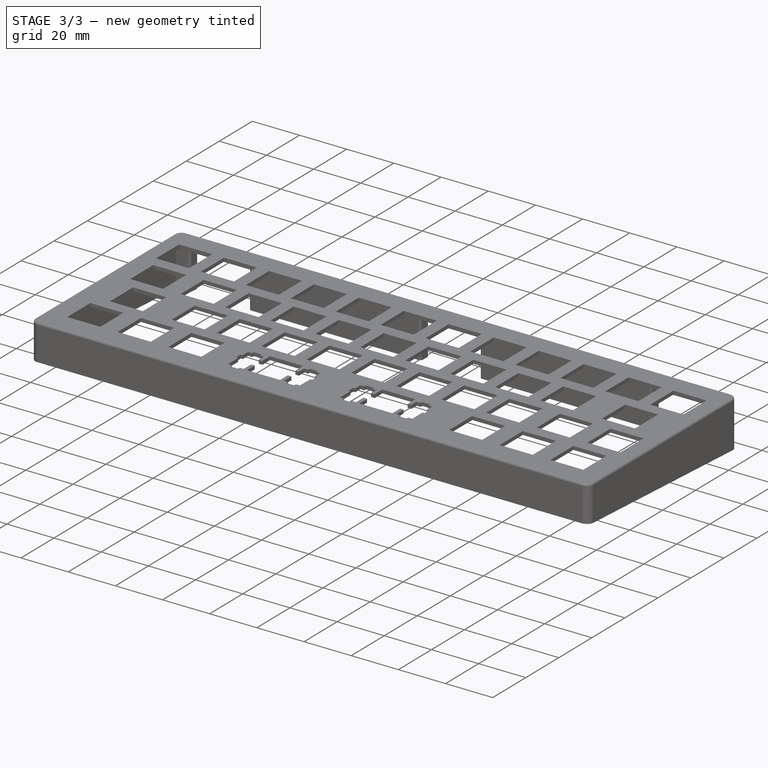
[diagram: stage 3 of 3 — iso view after this stage's code; geometry added in this stage tinted green]
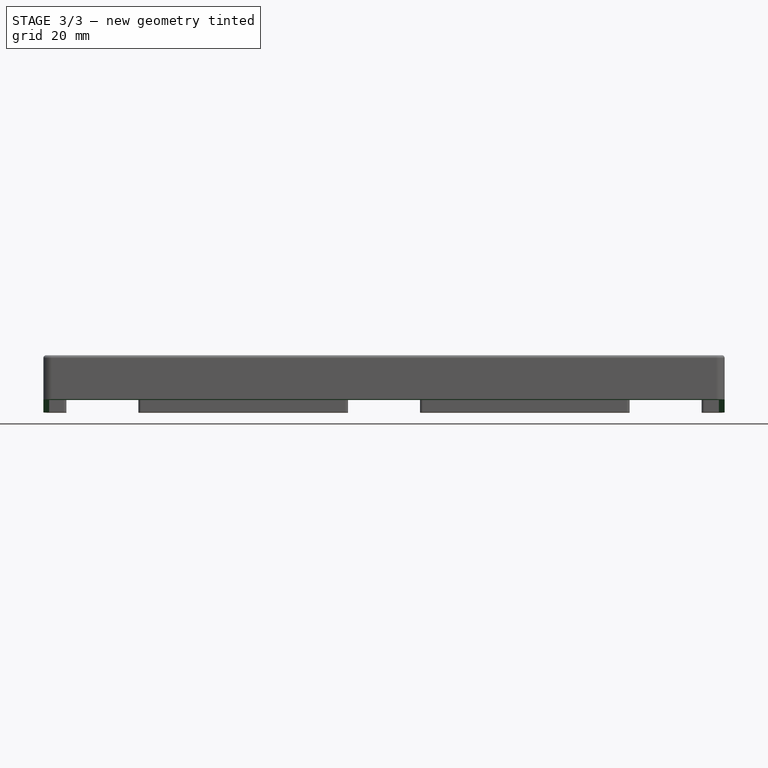
[diagram: stage 3 of 3 — front view after this stage's code; geometry added in this stage tinted green]
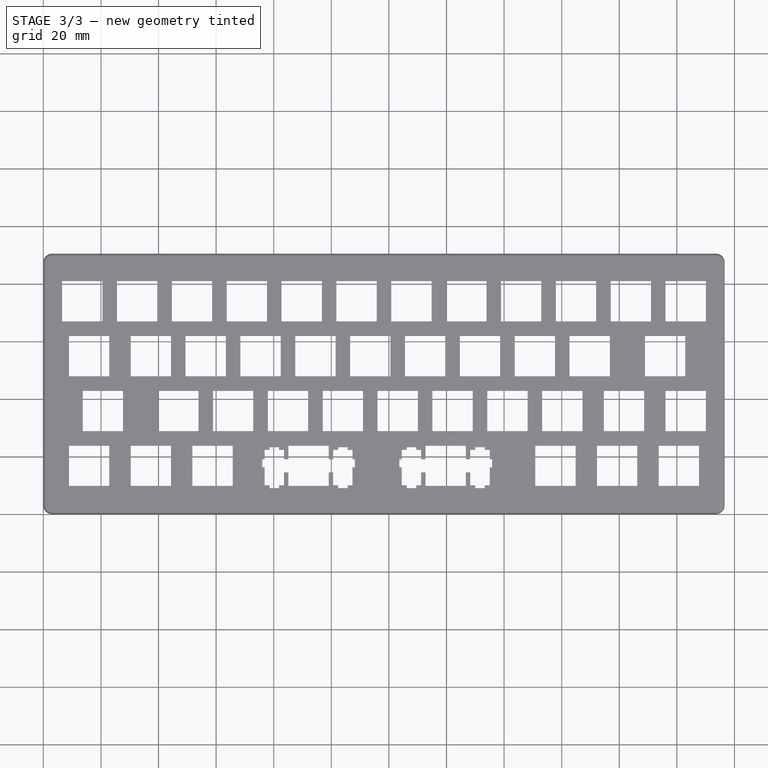
[diagram: stage 3 of 3 — top view after this stage's code; geometry added in this stage tinted green]
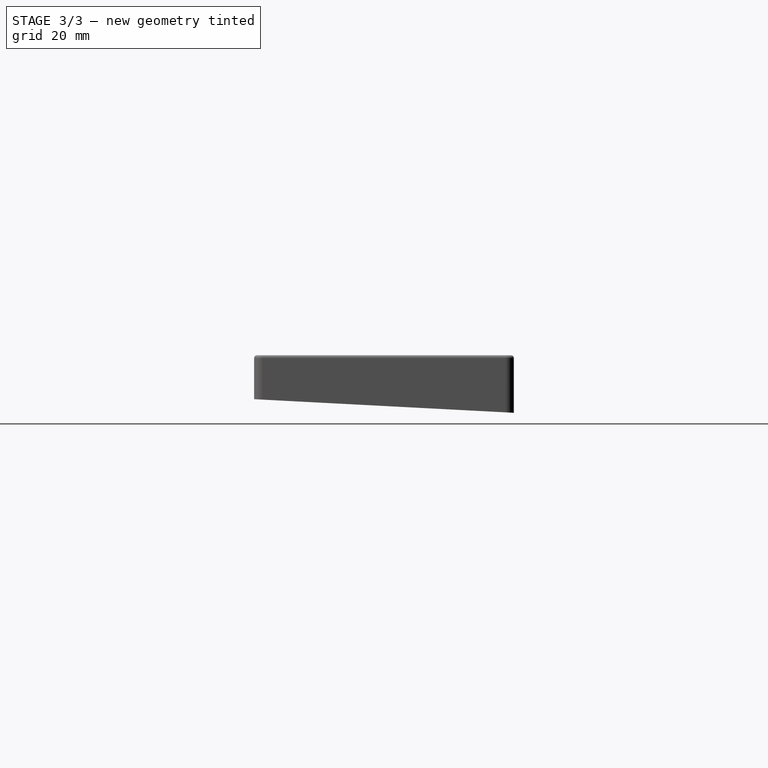
[diagram: stage 3 of 3 — right view after this stage's code; geometry added in this stage tinted green]
FEATURE [Sketcher::SketchObject] Sketch003
  ExternalGeometry = -> [Pocket001]
  FullyConstrained = true
  MapMode = 5
  Placement = pos=(236.6,0,0) rot=(0.57735,0.57735,0.57735;2.0944rad)
  Support = -> [Pocket001]
  sketch-geometry (3):
    g0: LineSegment StartX=90.1998 StartY=0 StartZ=0 EndX=0 EndY=4.72717 EndZ=0
    g1: LineSegment StartX=0 StartY=4.72717 StartZ=0 EndX=0 EndY=0 EndZ=0
    g2: LineSegment StartX=0 StartY=0 StartZ=0 EndX=90.1998 EndY=0 EndZ=0
  constraints (7):
    c: Coincident(g-4,g0)
    c: Coincident(g0,g1)
    c: Coincident(g1,g-3)
    c: Vertical(g1)
    c: Coincident(g1,g2)
    c: Coincident(g2,g0)
    c: Angle(g0,g2) = 0.0523599
FEATURE [PartDesign::Pocket] Pocket002
  BaseFeature = -> Pocket001
  Direction = (-1,0,0)
  Length = 5
  Length2 = 5
  Profile = -> Sketch003
  ReferenceAxis = -> Sketch003 [N_Axis]
  Type = 1
FEATURE [PartDesign::Fillet] Fillet
  Base = -> Pocket002 [Edge27,Edge291,Edge303,Edge289,Edge287,Edge285,Edge807,Edge815,Edge811,Edge281,Edge293,Edge283,Edge804]
  BaseFeature = -> Pocket002
  Radius = 1
  SupportTransform = false
  UseAllEdges = false
FEATURE [PartDesign::Body] Body
  Group = -> [Sketch,Pad,Sketch001,Pocket,Sketch002,Pocket001,Sketch003,Pocket002,Fillet]
  Origin = -> Origin
  Tip = -> Fillet
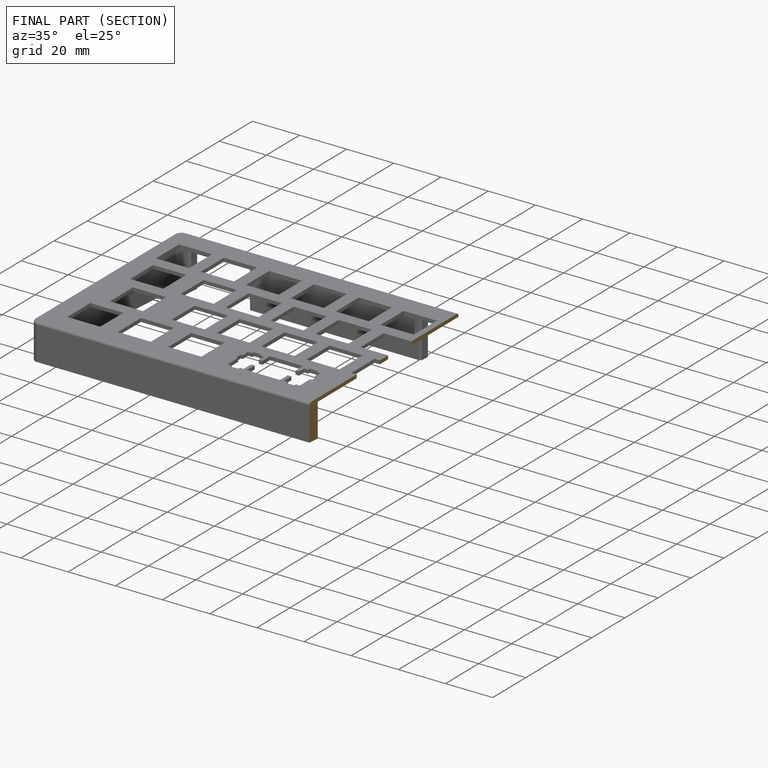
[diagram: finished part — half-section view (interior)]
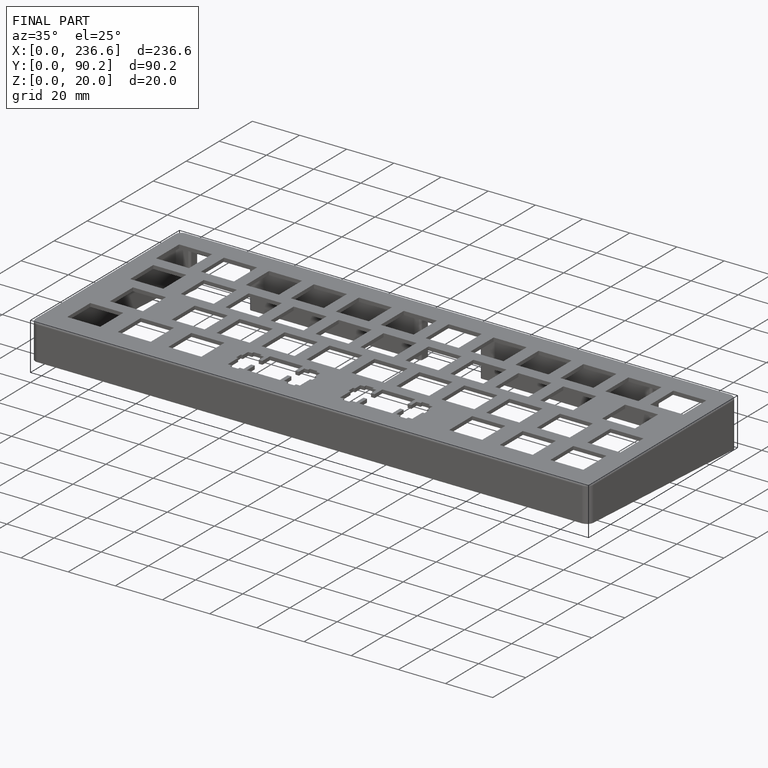
[diagram: finished part — iso view with bounding-box wireframe]
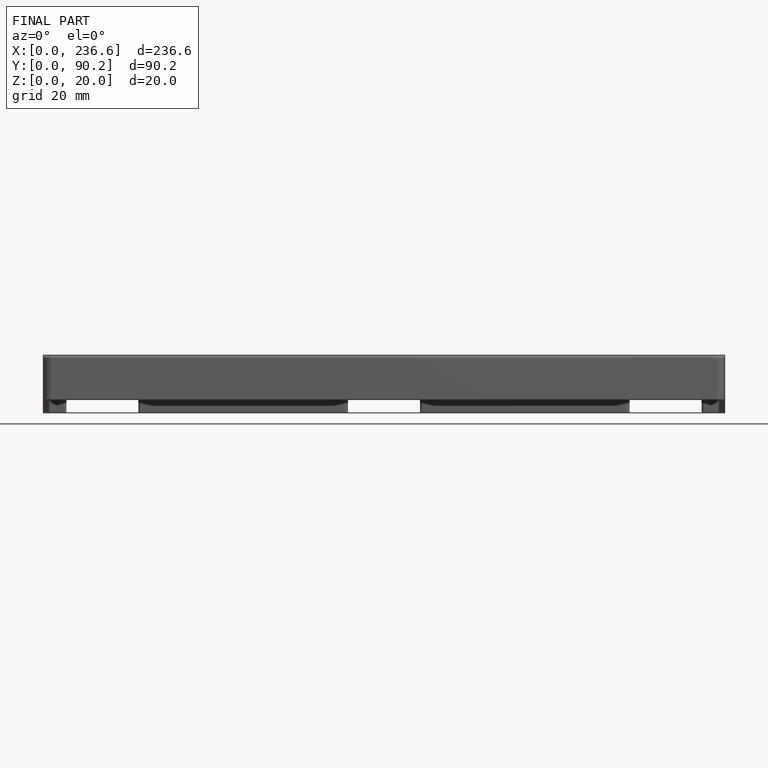
[diagram: finished part — front view with bounding-box wireframe]
